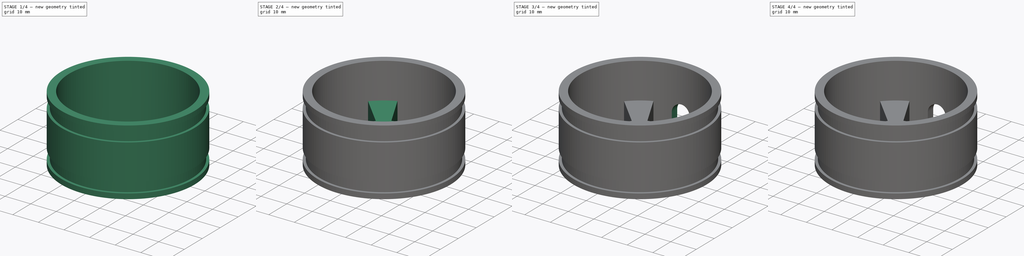
[diagram: build sequence overview — one tinted view per stage of 4, left to right]
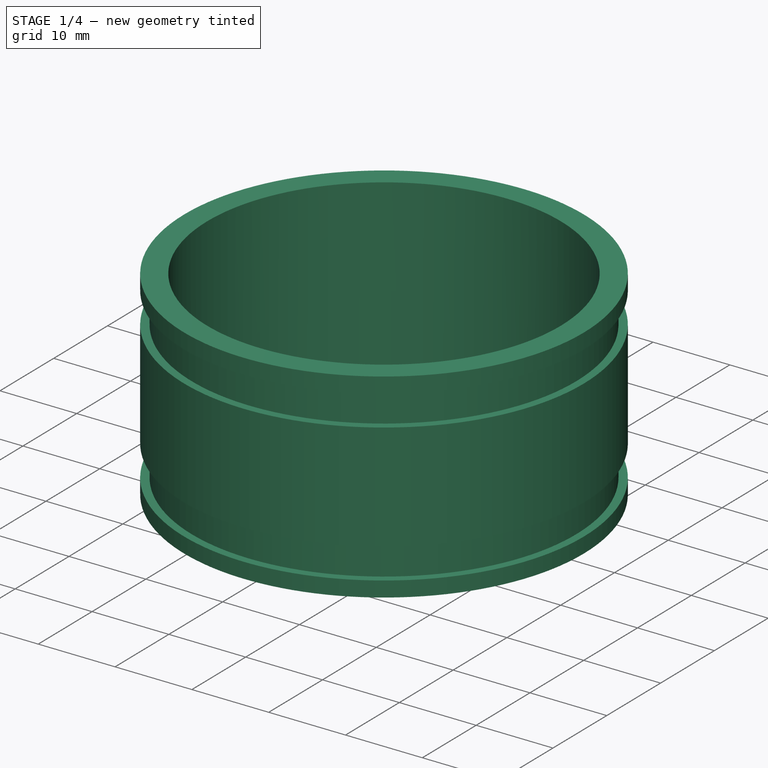
[diagram: stage 1 of 4 — iso view after this stage's code; geometry added in this stage tinted green]
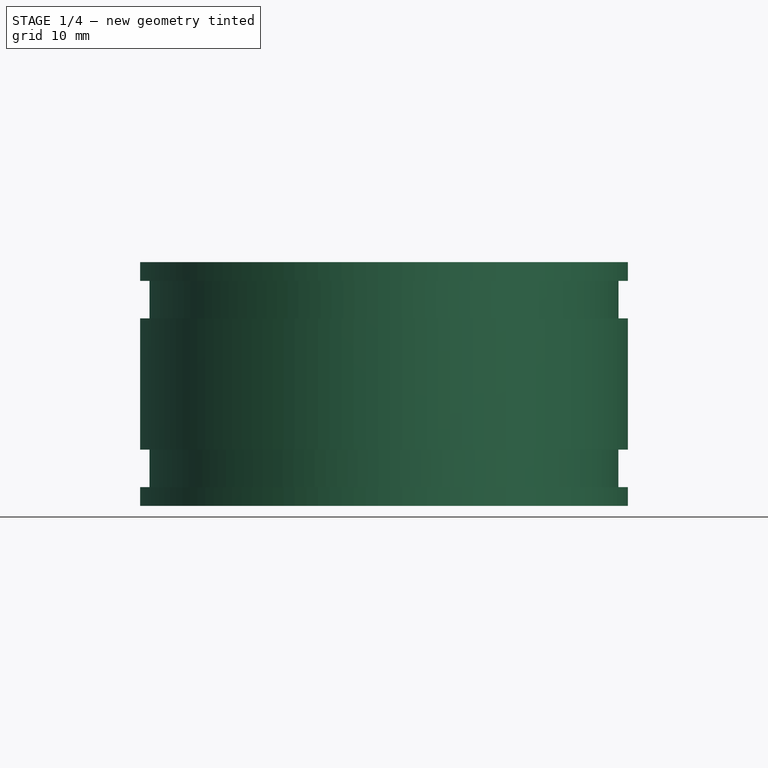
[diagram: stage 1 of 4 — front view after this stage's code; geometry added in this stage tinted green]
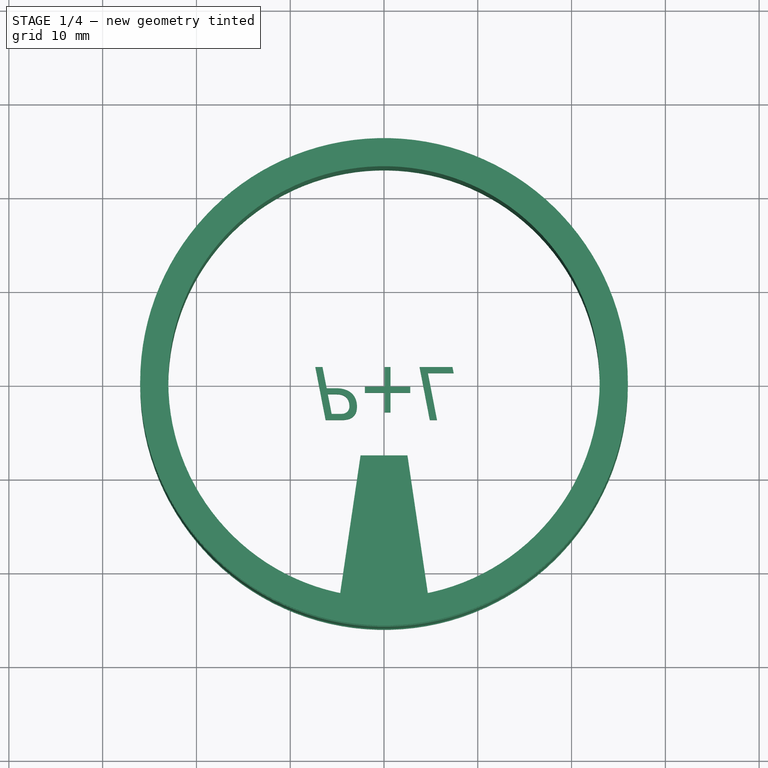
[diagram: stage 1 of 4 — top view after this stage's code; geometry added in this stage tinted green]
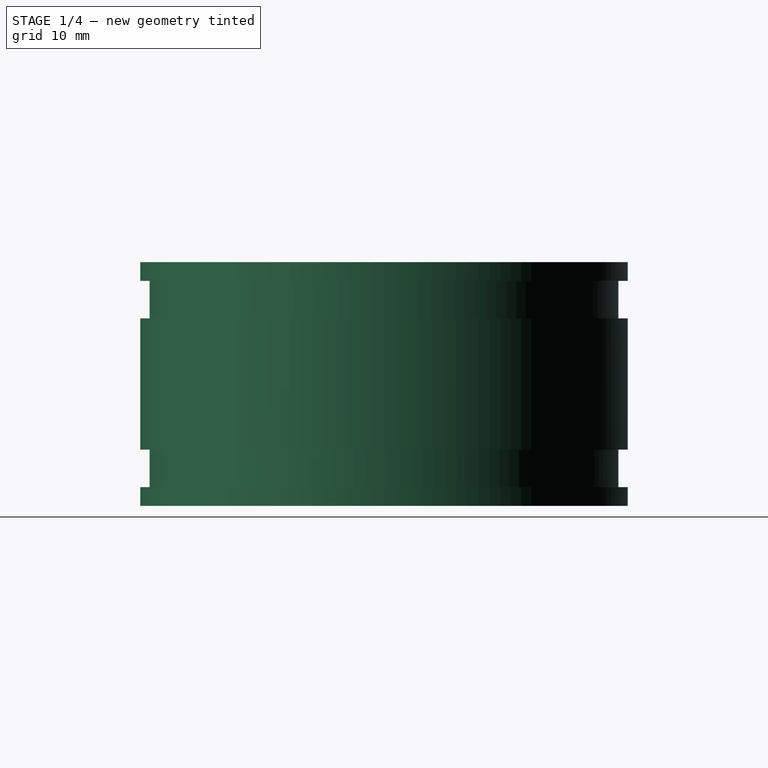
[diagram: stage 1 of 4 — right view after this stage's code; geometry added in this stage tinted green]
FCSTD DOCUMENT  (FreeCAD 0.18.1R)
Label: hub
License: All rights reserved
LicenseURL: http://en.wikipedia.org/wiki/All_rights_reserved
objects: Sketcher::SketchObject×6, PartDesign::Pocket×3, PartDesign::PolarPattern×2, PartDesign::Pad×2, PartDesign::Revolution×1, PartDesign::Plane×1, PartDesign::Fillet×1, PartDesign::Body×1, Part::Part2DObjectPython×1, Part::Extrusion×1, Part::Cut×1
note: 26 computed .brp shape members not serialized (recipe doc carries the construction recipe); baked Part::Feature solids carry a one-line shape summary decoded from their .brp

FEATURE [Sketcher::SketchObject] Sketch
  MapMode = 5
  Placement = pos=(0,0,0) rot=(1,0,0;1.5708rad)
  Support = -> [XZ_Plane]
  sketch-geometry (12):
    g0: LineSegment StartX=-26 StartY=13 StartZ=0 EndX=-23 EndY=13 EndZ=0
    g1: LineSegment StartX=-23 StartY=13 StartZ=0 EndX=-23 EndY=-13 EndZ=0
    g2: LineSegment StartX=-23 StartY=-13 StartZ=0 EndX=-26 EndY=-13 EndZ=0
    g3: LineSegment StartX=-26 StartY=-13 StartZ=0 EndX=-26 EndY=-11 EndZ=0
    g4: LineSegment StartX=-26 StartY=11 StartZ=0 EndX=-25 EndY=11 EndZ=0
    g5: LineSegment StartX=-25 StartY=11 StartZ=0 EndX=-25 EndY=7 EndZ=0
    g6: LineSegment StartX=-25 StartY=7 StartZ=0 EndX=-26 EndY=7 EndZ=0
    g7: LineSegment StartX=-26 StartY=11 StartZ=0 EndX=-26 EndY=13 EndZ=0
    g8: LineSegment StartX=-26 StartY=-7 StartZ=0 EndX=-25 EndY=-7 EndZ=0
    g9: LineSegment StartX=-25 StartY=-7 StartZ=0 EndX=-25 EndY=-11 EndZ=0
    g10: LineSegment StartX=-25 StartY=-11 StartZ=0 EndX=-26 EndY=-11 EndZ=0
    g11: LineSegment StartX=-26 StartY=-7 StartZ=0 EndX=-26 EndY=7 EndZ=0
  constraints (35):
    c: Coincident(g0,g1)
    c: Coincident(g1,g2)
    c: Coincident(g2,g3)
    c: Coincident(g7,g0)
    c: Horizontal(g0)
    c: Horizontal(g2)
    c: Symmetric(g0,g1,g-1)
    c: Coincident(g4,g5)
    c: Coincident(g5,g6)
    c: Horizontal(g4)
    c: Horizontal(g6)
    c: Vertical(g5)
    c: Coincident(g6,g11)
    c: Coincident(g7,g4)
    c: Coincident(g8,g9)
    c: Coincident(g9,g10)
    c: Horizontal(g8)
    c: Horizontal(g10)
    c: Vertical(g9)
    c: Coincident(g11,g8)
    c: Coincident(g3,g10)
    c: Equal(g5,g9)
    c: Equal(g4,g6)
    c: Equal(g6,g8)
    c: Equal(g8,g10)
    c: Equal(g7,g3)
    c: DistanceX(g0,g-1) = 26
    c: Vertical(g7)
    c: Vertical(g11)
    c: Vertical(g3)
    c: DistanceX(g0,g-1) = 23
    c: DistanceX(g4,g-1) = 25
    c: DistanceY(g7,g7) = 2
    c: DistanceY(g9,g9) = 4
    c: DistanceY(g1,g1) = 26
FEATURE [PartDesign::Revolution] Revolution  label="Rim"
  Angle = 360
  Axis = (0,2e-16,1)
  Base = (0,0,0)
  Placement = pos=(0,0,0) rot=(1,0,0;1.5708rad)
  Profile = -> Sketch
  ReferenceAxis = -> Sketch [V_Axis]
  Refine = true
FEATURE [PartDesign::Plane] DatumPlane  label="External surface"
  Length = 62.389
  MapMode = 5
  Placement = pos=(0,-2e-14,-13) rot=(1,0,0;3.14159rad)
  ResizeMode = 0
  Width = 62.396
FEATURE [Sketcher::SketchObject] Sketch001
  MapMode = 5
  Placement = pos=(0,-2e-14,-13) rot=(1,0,0;3.14159rad)
  Support = -> [DatumPlane]
  sketch-geometry (1):
    g0: Circle CenterX=0 CenterY=0 CenterZ=0 NormalX=0 NormalY=0 NormalZ=1 AngleXU=0 Radius=8
  constraints (2):
    c: Diameter(g0) = 16
    c: Coincident(g0,g-1)
FEATURE [Sketcher::SketchObject] Sketch002
  AttachmentOffset = pos=(0,-15,0) rot=(0,0,1;0rad)
  ExternalGeometry = -> [Sketch001,Revolution]
  MapMode = 5
  Placement = pos=(0,15,-13) rot=(1,0,0;3.14159rad)
  Support = -> [DatumPlane]
  sketch-geometry (4):
    g0: LineSegment StartX=-5 StartY=39.4949 StartZ=0 EndX=5 EndY=39.4949 EndZ=0
    g1: LineSegment StartX=5 StartY=39.4949 StartZ=0 EndX=2.5 EndY=22.5993 EndZ=0
    g2: LineSegment StartX=2.5 StartY=22.5993 StartZ=0 EndX=-2.5 EndY=22.5993 EndZ=0
    g3: LineSegment StartX=-2.5 StartY=22.5993 StartZ=0 EndX=-5 EndY=39.4949 EndZ=0
  constraints (12):
    c: Coincident(g0,g1)
    c: Coincident(g1,g2)
    c: Coincident(g2,g3)
    c: Coincident(g3,g0)
    c: Horizontal(g0)
    c: Horizontal(g2)
    c: DistanceX(g0,g0) = 10
    c: Equal(g3,g1)
    c: PointOnObject(g0,g-6)
    c: PointOnObject(g2,g-3)
    c: PointOnObject(g1,g-3)
    c: DistanceX(g2,g2) = 5
FEATURE [PartDesign::Pad] Pad
  BaseFeature = -> Revolution
  Length = 12
  Length2 = 100
  Placement = pos=(0,0,0) rot=(1,0,0;1.5708rad)
  Profile = -> Sketch002
  Refine = true
  Reversed = true
  Type = 0
FEATURE [PartDesign::Body] Body
  Group = -> [Sketch,Revolution,Sketch001,Sketch002,PolarPattern,DatumPlane,Pad,Fillet,PolarPattern001,Pad001,Sketch003,Sketch004,Pocket001,Sketch005,Pocket002,Pocket]
  Origin = -> Origin
  Tip = -> Pocket
FEATURE [Part::Part2DObjectPython] ShapeString  # Draft 2D object (typed FeaturePython)
  FontFile = <path>
  Placement = pos=(-6.53,2,-13) rot=(1,0,0;3.14159rad)
  Size = 6
  String = P+L
  Tracking = 0
FEATURE [Part::Extrusion] Extrude  label="Logo"
  Base = -> ShapeString
  Dir = (-8.74228e-08,0,-1)
  DirMode = 2
  FaceMakerClass = Part::FaceMakerBullseye
  LengthFwd = 2
  LengthRev = 0
  Placement = pos=(-1,0,0) rot=(0,0,1;0rad)
  Reversed = true
  Solid = false
  Symmetric = false
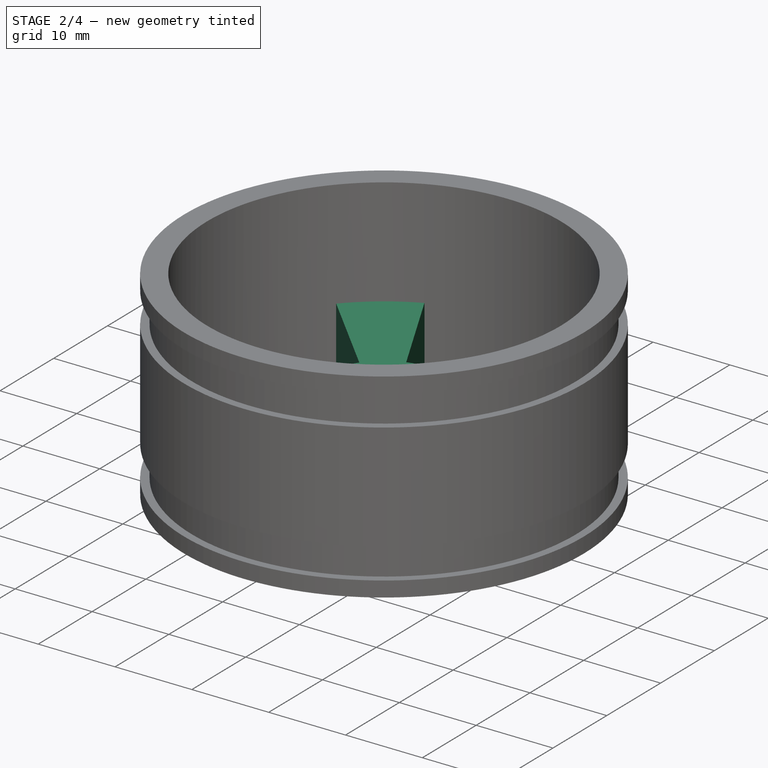
[diagram: stage 2 of 4 — iso view after this stage's code; geometry added in this stage tinted green]
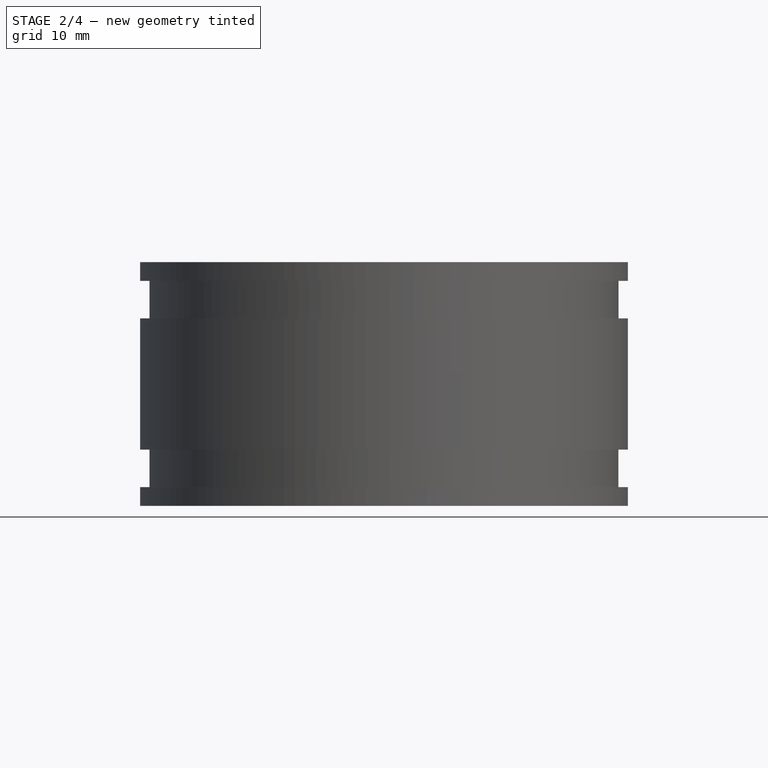
[diagram: stage 2 of 4 — front view after this stage's code; geometry added in this stage tinted green]
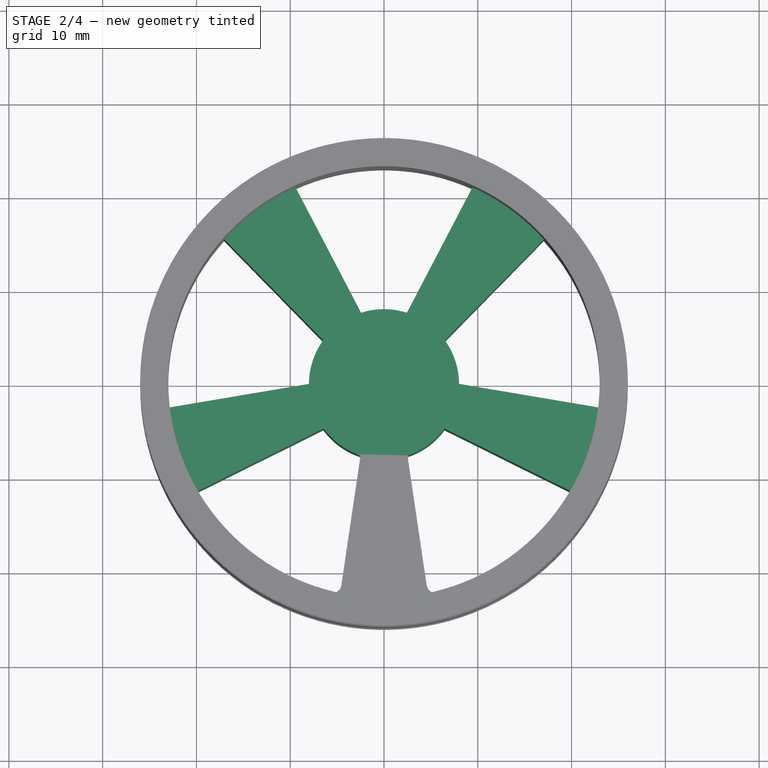
[diagram: stage 2 of 4 — top view after this stage's code; geometry added in this stage tinted green]
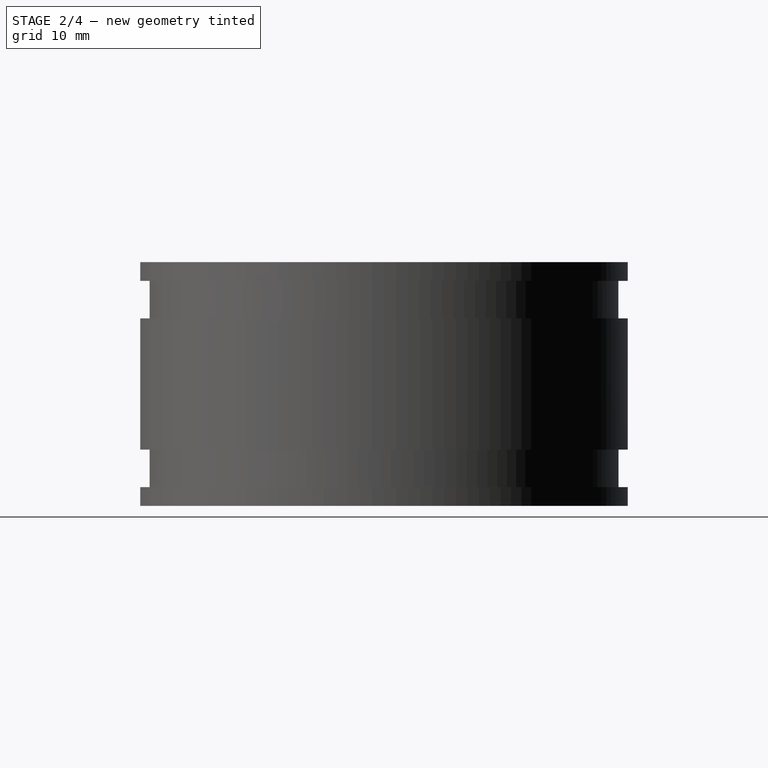
[diagram: stage 2 of 4 — right view after this stage's code; geometry added in this stage tinted green]
FEATURE [Sketcher::SketchObject] Sketch004
  MapMode = 5
  Placement = pos=(0,0,0) rot=(1,0,0;1.5708rad)
  Support = -> [XZ_Plane]
  sketch-geometry (2):
    g0: Circle CenterX=0 CenterY=-8 CenterZ=0 NormalX=0 NormalY=0 NormalZ=1 AngleXU=0 Radius=1.85
    g1: Circle CenterX=0 CenterY=-4 CenterZ=0 NormalX=0 NormalY=0 NormalZ=1 AngleXU=0 Radius=1.85
  constraints (6):
    c: PointOnObject(g0,g-2)
    c: Diameter(g0) = 3.7
    c: DistanceY(g0,g-1) = 8
    c: PointOnObject(g1,g-2)
    c: Equal(g1,g0)
    c: DistanceY(g0,g1) = 4
FEATURE [PartDesign::Fillet] Fillet
  Base = -> Pad [Edge22,Edge20]
  BaseFeature = -> Pad
  Placement = pos=(0,0,0) rot=(1,0,0;1.5708rad)
  Radius = 1
FEATURE [PartDesign::PolarPattern] PolarPattern001  label="Spokes"
  Angle = 360
  Axis = -> Z_Axis
  BaseFeature = -> Fillet
  Occurrences = 5
  Originals = -> [Pad]
  Placement = pos=(0,0,0) rot=(1,0,0;1.5708rad)
  Refine = true
FEATURE [PartDesign::Pad] Pad001
  BaseFeature = -> PolarPattern001
  Length = 12
  Length2 = 100
  Placement = pos=(0,0,0) rot=(1,0,0;1.5708rad)
  Profile = -> Sketch001
  Refine = true
  Reversed = true
  Type = 0
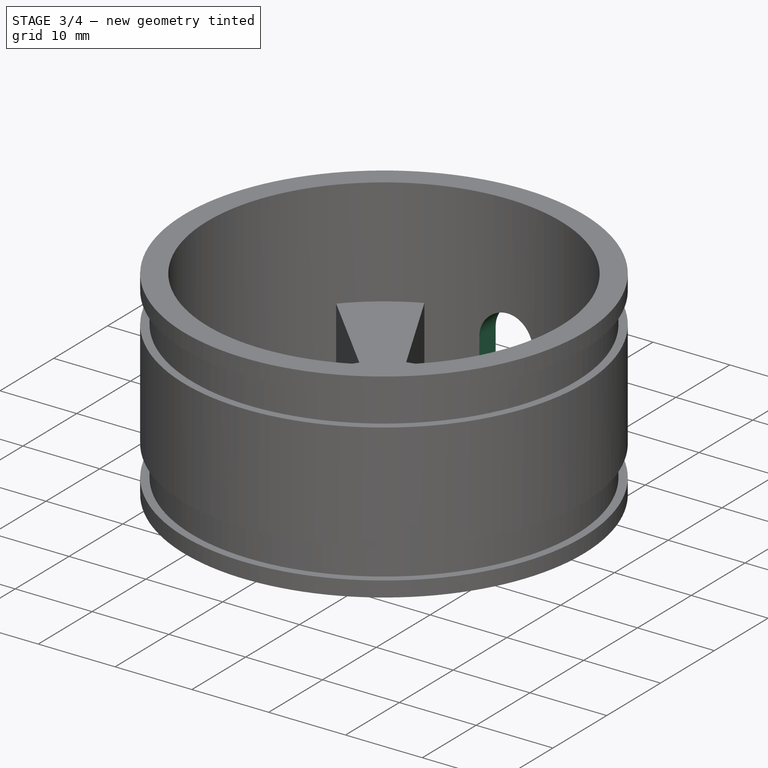
[diagram: stage 3 of 4 — iso view after this stage's code; geometry added in this stage tinted green]
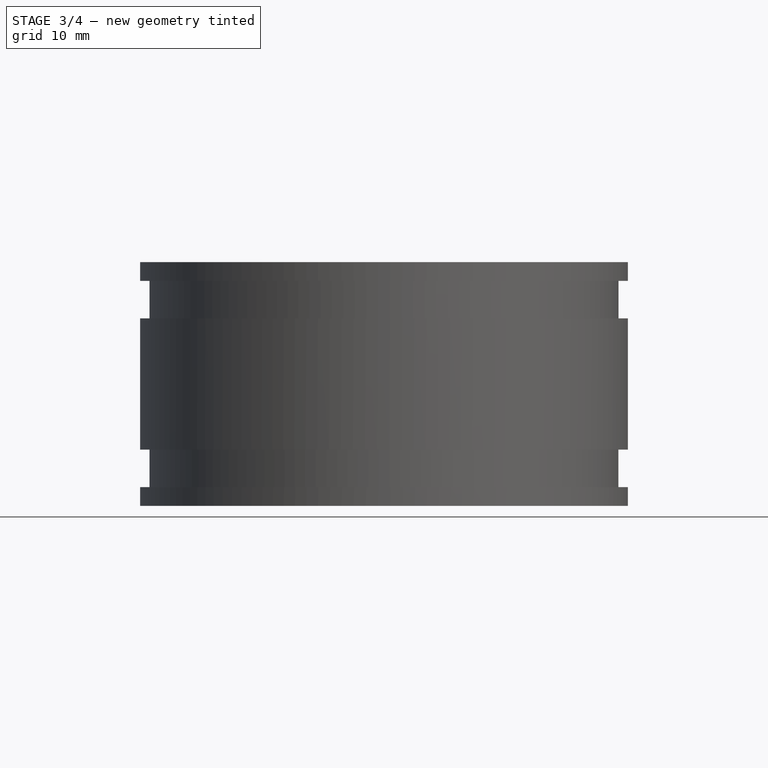
[diagram: stage 3 of 4 — front view after this stage's code; geometry added in this stage tinted green]
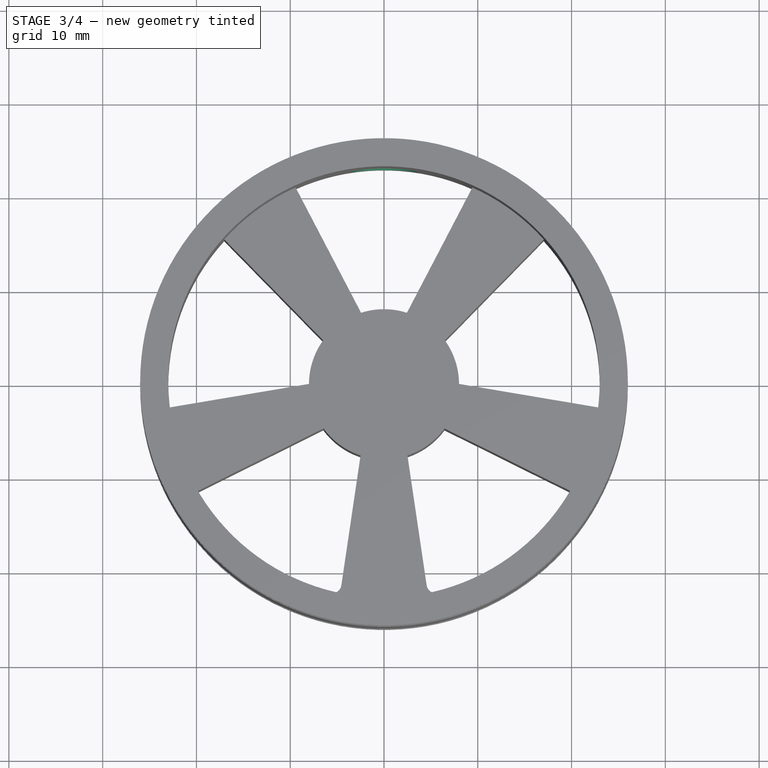
[diagram: stage 3 of 4 — top view after this stage's code; geometry added in this stage tinted green]
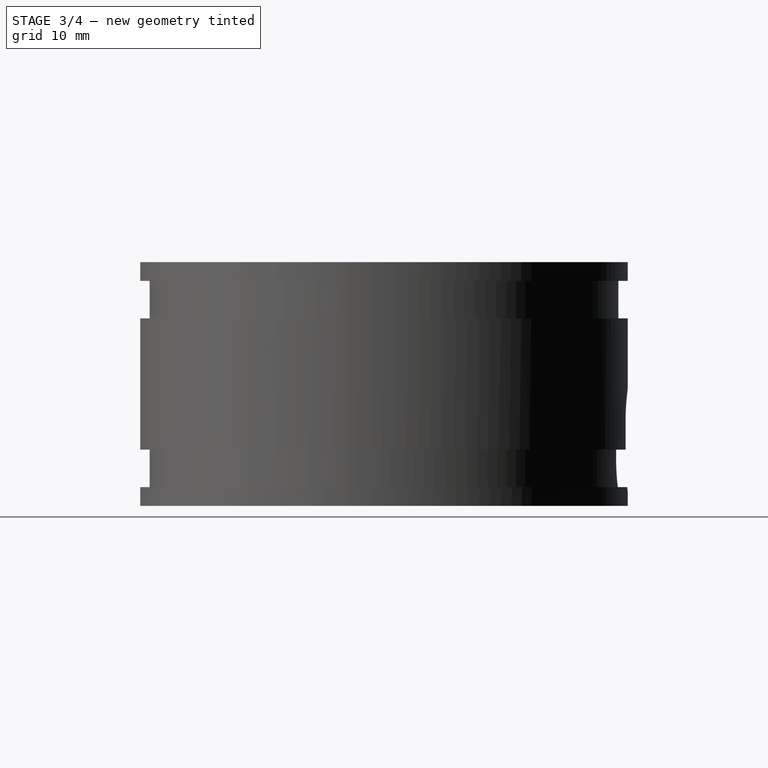
[diagram: stage 3 of 4 — right view after this stage's code; geometry added in this stage tinted green]
FEATURE [PartDesign::Pocket] Pocket001  label="Grub screw"
  BaseFeature = -> Pad001
  Length = 5
  Length2 = 100
  Placement = pos=(0,0,0) rot=(1,0,0;1.5708rad)
  Profile = -> Sketch004
  Refine = true
  Type = 1
FEATURE [Sketcher::SketchObject] Sketch005
  AttachmentOffset = pos=(0,0,-20) rot=(0,0,1;0rad)
  ExternalGeometry = -> [Pocket001]
  MapMode = 5
  Placement = pos=(0,20,4e-15) rot=(1,0,0;1.5708rad)
  Support = -> [XZ_Plane]
  sketch-geometry (4):
    g0: ArcOfCircle CenterX=0 CenterY=-3.98983 CenterZ=0 NormalX=0 NormalY=0 NormalZ=1 AngleXU=0 Radius=3.5 StartAngle=1e-16 EndAngle=3.14159
    g1: ArcOfCircle CenterX=2e-16 CenterY=-7.98983 CenterZ=0 NormalX=0 NormalY=0 NormalZ=1 AngleXU=0 Radius=3.5 StartAngle=3.14159 EndAngle=6.28319
    g2: LineSegment StartX=-3.5 StartY=-3.98983 StartZ=0 EndX=-3.5 EndY=-7.98983 EndZ=0
    g3: LineSegment StartX=3.5 StartY=-3.98983 StartZ=0 EndX=3.5 EndY=-7.98983 EndZ=0
  constraints (10):
    c: Tangent(g0,g3) = 1.5708
    c: Tangent(g0,g2) = -1.5708
    c: Tangent(g2,g1) = -1.5708
    c: Tangent(g3,g1) = 1.5708
    c: Vertical(g2)
    c: Equal(g0,g1)
    c: PointOnObject(g0,g-2)
    c: DistanceY(g1,g0) = 4
    c: DistanceX(g0,g0) = 7
    c: DistanceY(g0) = -3.98983
FEATURE [PartDesign::Pocket] Pocket002
  BaseFeature = -> Pocket001
  Length = 10
  Length2 = 100
  Placement = pos=(0,0,0) rot=(1,0,0;1.5708rad)
  Profile = -> Sketch005
  Refine = true
  Type = 0
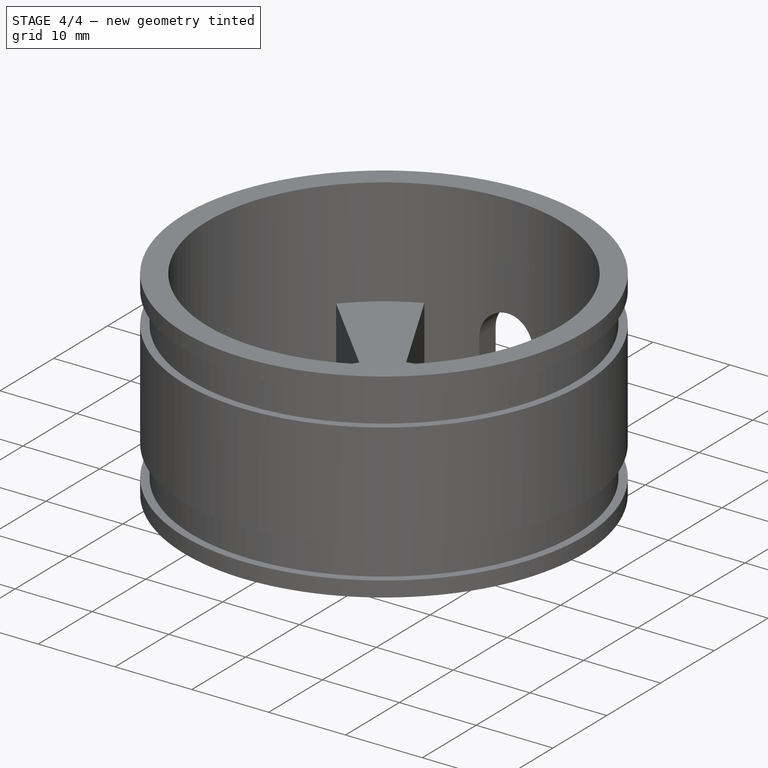
[diagram: stage 4 of 4 — iso view after this stage's code; geometry added in this stage tinted green]
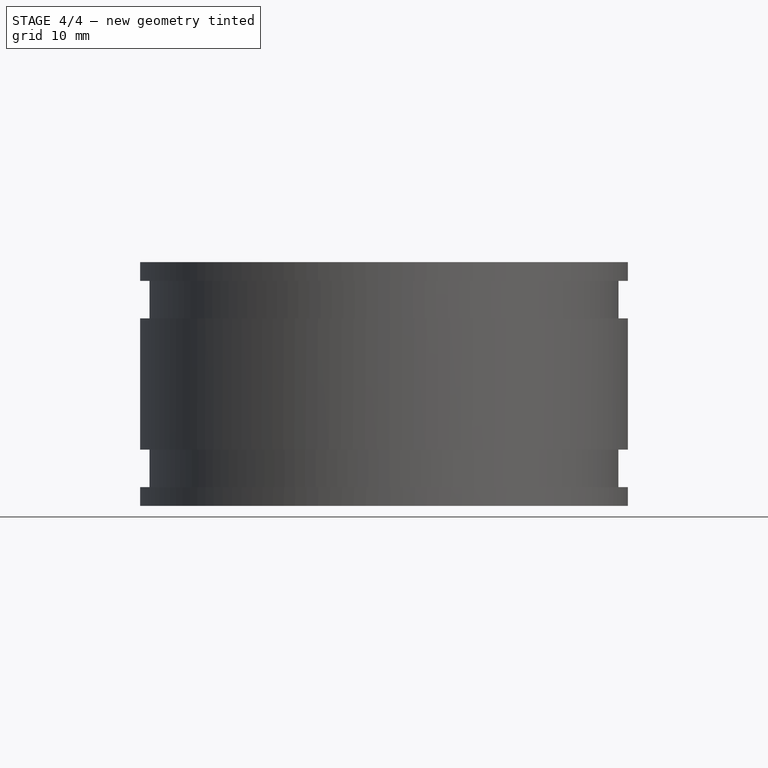
[diagram: stage 4 of 4 — front view after this stage's code; geometry added in this stage tinted green]
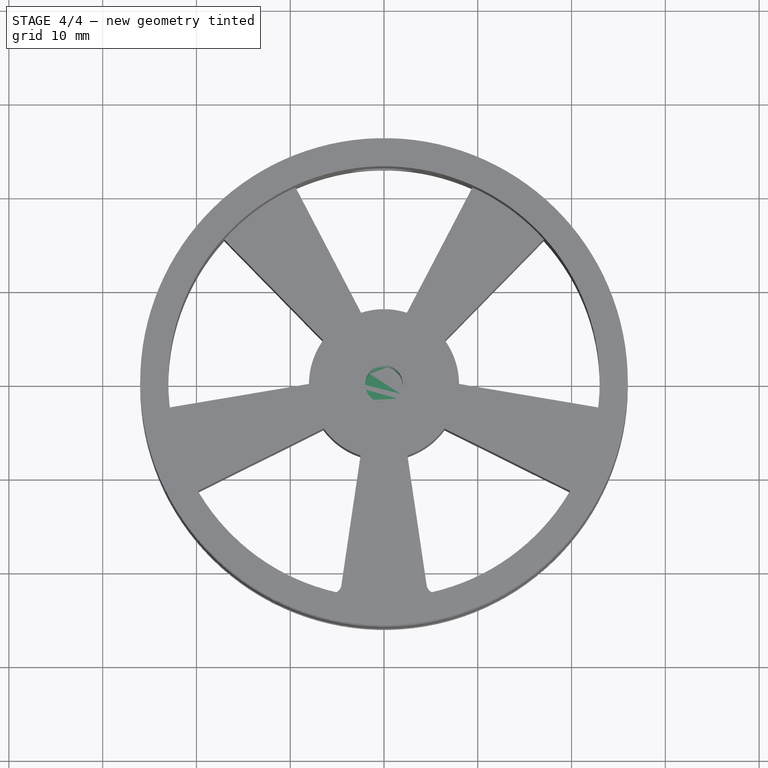
[diagram: stage 4 of 4 — top view after this stage's code; geometry added in this stage tinted green]
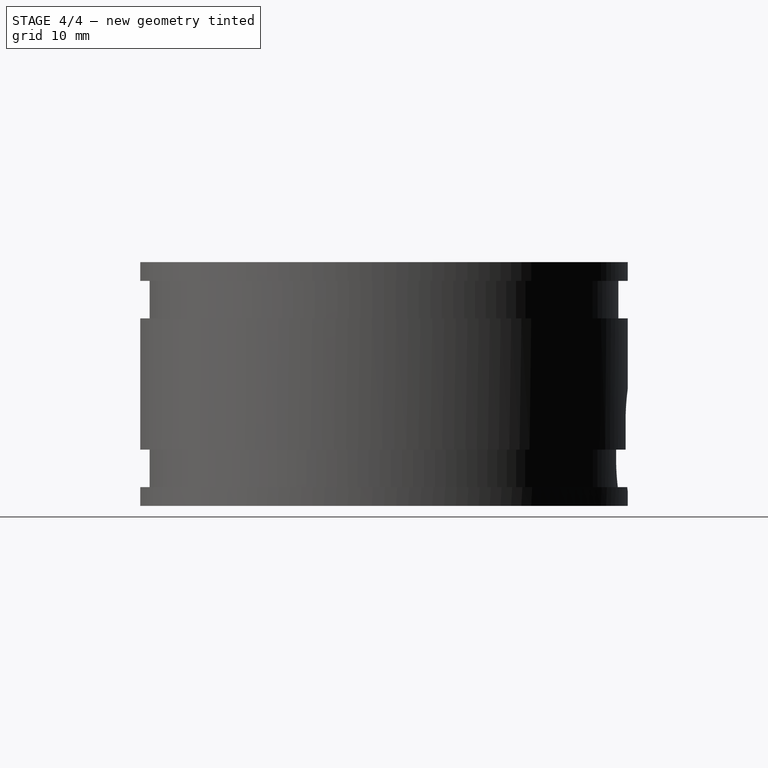
[diagram: stage 4 of 4 — right view after this stage's code; geometry added in this stage tinted green]
FEATURE [PartDesign::PolarPattern] PolarPattern
  Angle = 360
  Axis = -> Z_Axis
  BaseFeature = -> Revolution
  Occurrences = 5
  Placement = pos=(0,0,0) rot=(1,0,0;1.5708rad)
  Refine = true
FEATURE [Sketcher::SketchObject] Sketch003
  MapMode = 5
  Placement = pos=(2e-16,-4e-16,-1) rot=(0,0,1;3.14159rad)
  Support = -> [Pocket002]
  sketch-geometry (1):
    g0: Circle CenterX=0 CenterY=0 CenterZ=0 NormalX=0 NormalY=0 NormalZ=1 AngleXU=0 Radius=2
  constraints (2):
    c: Coincident(g0,g-1)
    c: Diameter(g0) = 4
FEATURE [PartDesign::Pocket] Pocket
  BaseFeature = -> Pocket002
  Length = 10
  Length2 = 100
  Placement = pos=(0,0,0) rot=(1,0,0;1.5708rad)
  Profile = -> Sketch003
  Refine = true
  Type = 0
FEATURE [Part::Cut] Cut
  Base = -> Body
  Refine = true
  Tool = -> Extrude
note: 1 file-system path scrubbed to <path> (originals preserved in the JSON sidecar)
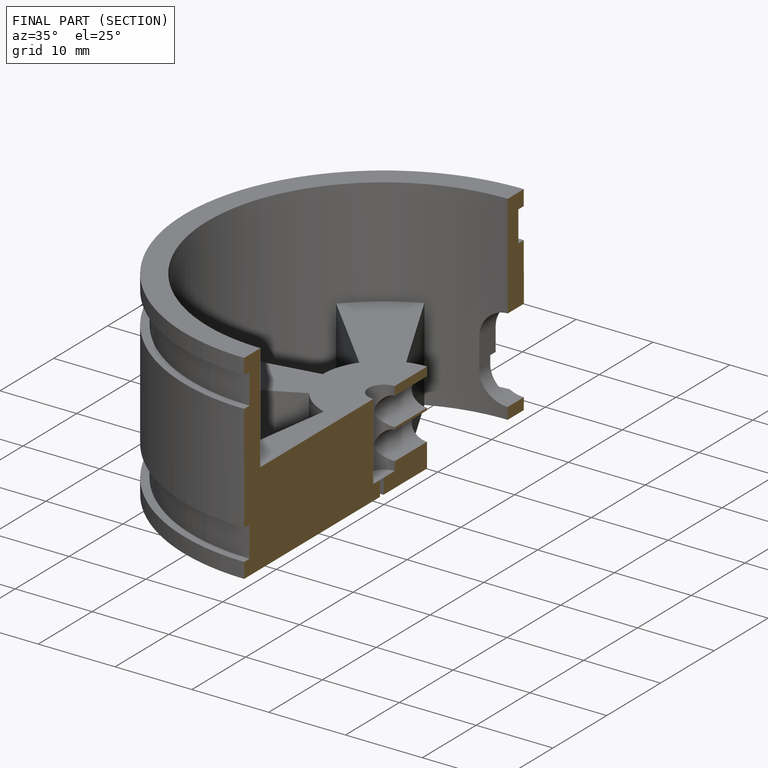
[diagram: finished part — half-section view (interior)]
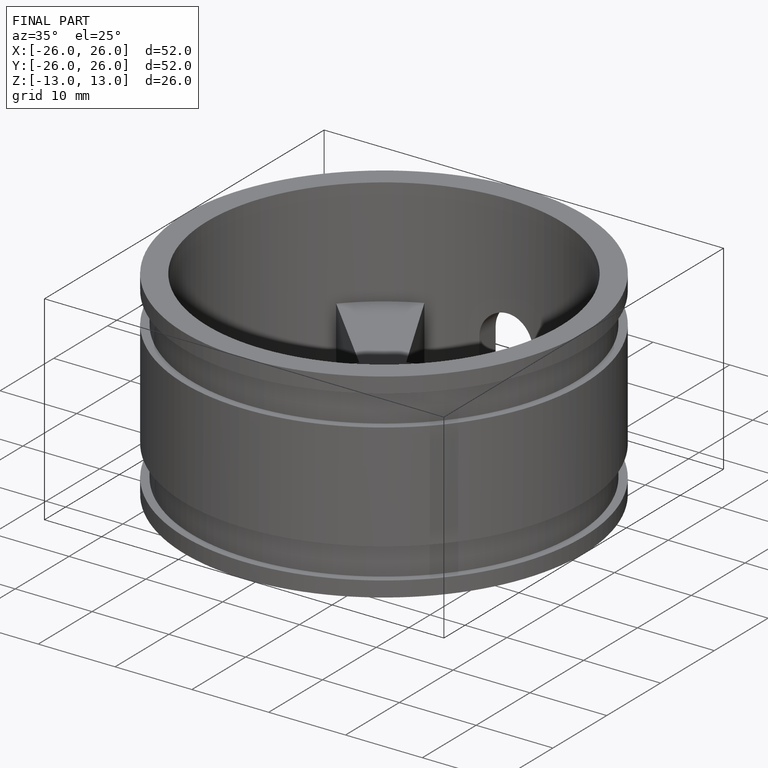
[diagram: finished part — iso view with bounding-box wireframe]
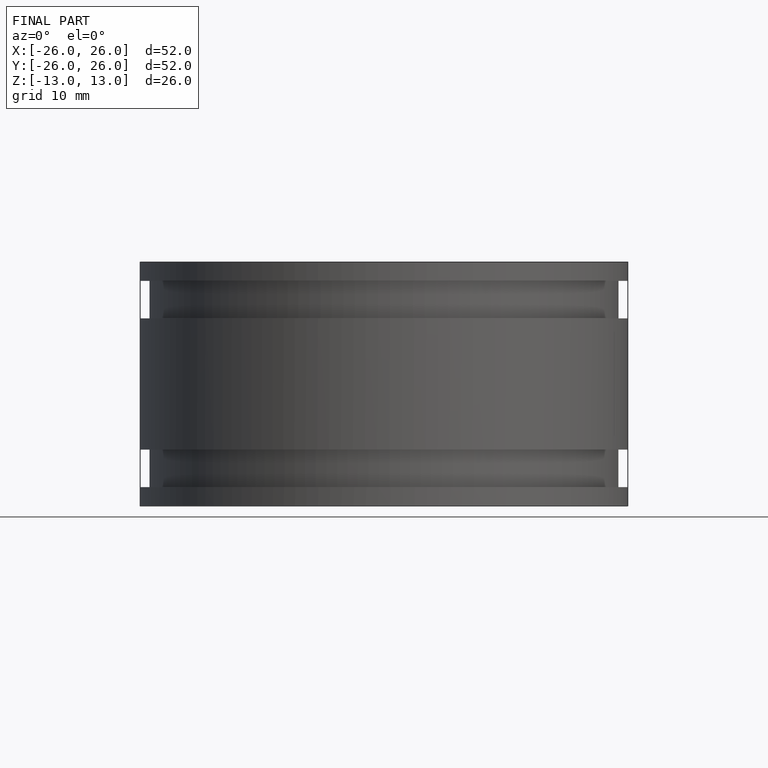
[diagram: finished part — front view with bounding-box wireframe]
